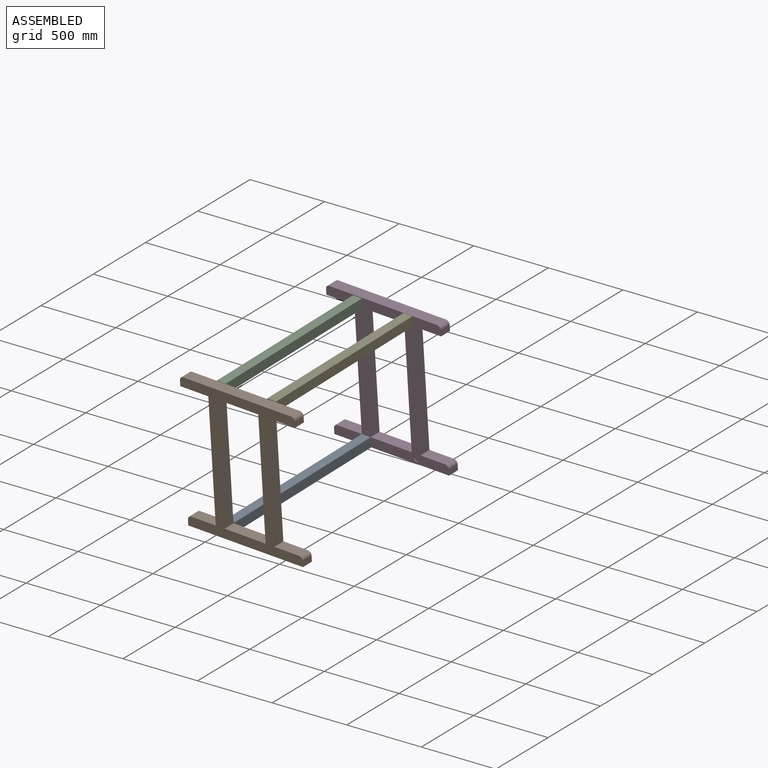
[diagram: assembled view]
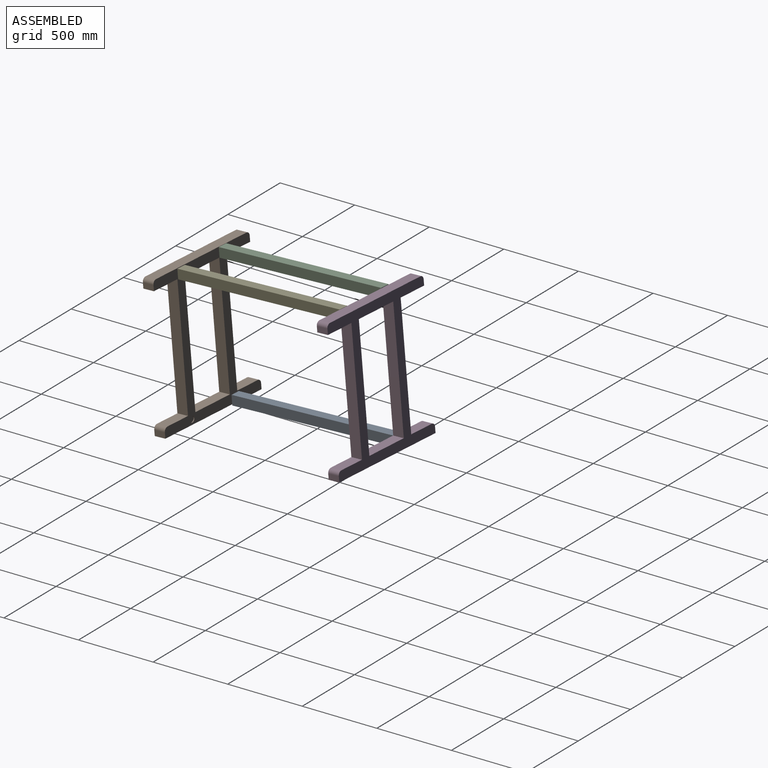
[diagram: assembled view, second angle]
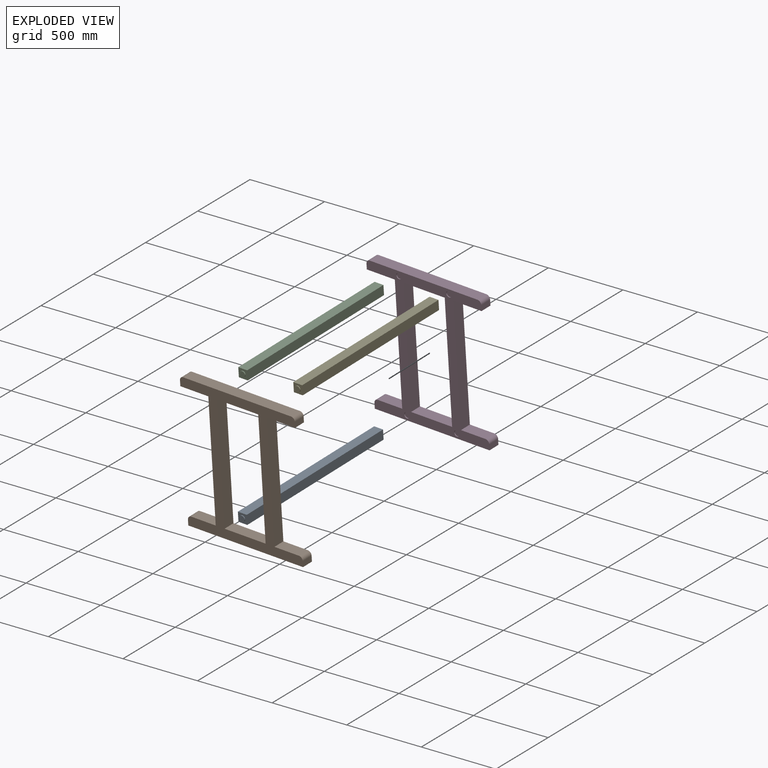
[diagram: exploded view]
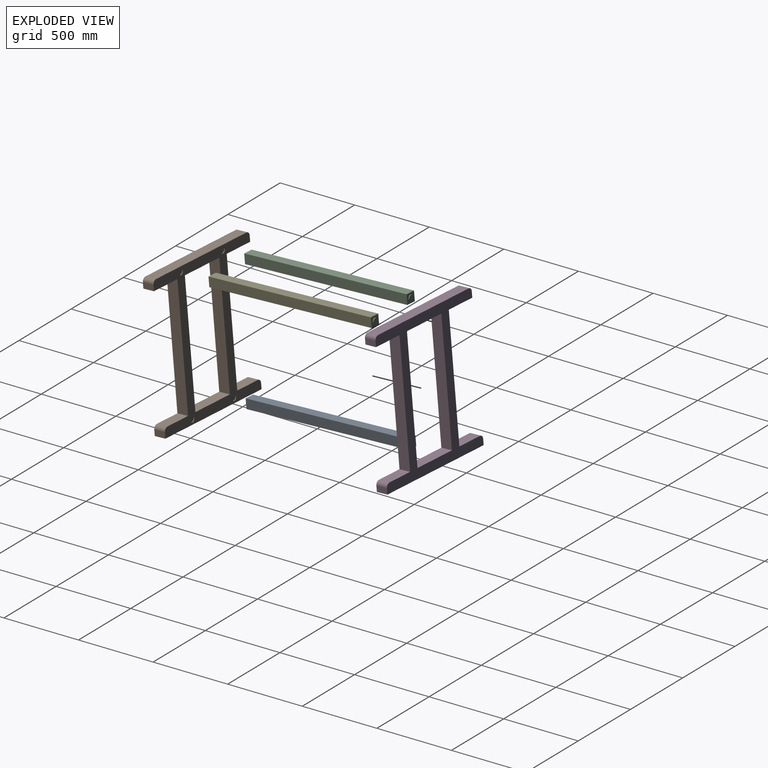
[diagram: exploded view, second angle]
ASSEMBLY  parts=5 mates=5
PART A: 10 faces, bbox 63.5x1181.1x63.5 mm
  f0: plane 1168.4x63.5mm, normal (0,0,-1), area 74193.4mm2, adj f1,f3,f4,f5
  f1: plane 1168.4x63.5mm, normal (1,0,0), area 74193.4mm2, adj f0,f2,f4,f5
  f2: plane 1168.4x63.5mm, normal (0,0,1), area 74193.4mm2, adj f1,f3,f4,f5
  f3: plane 1168.4x63.5mm, normal (-1,0,0), area 74193.4mm2, adj f0,f2,f4,f5
  f4: plane 63.5x63.5mm, normal (0,-1,0), area 2892.2mm2, adj f0,f1,f2,f3,f8
  f5: plane 63.5x63.5mm, normal (0,1,0), area 2892.2mm2, adj f0,f1,f2,f3,f6
  f6: cylinder r=19.05mm len=38.1mm, axis (0,-1,0), area 760.1mm2, adj f5,f7
  f7: plane 38.1x38.1mm, normal (0,1,0), area 1140.1mm2, adj f6
  f8: cylinder r=19.05mm len=38.1mm, axis (0,1,0), area 760.1mm2, adj f4,f9
  f9: plane 38.1x38.1mm, normal (0,-1,0), area 1140.1mm2, adj f8
PART B: 30 faces, bbox 822.4x76.2x939.8 mm
  f0: plane 939.8x822.39mm, normal (0,-1,0), area 202554.5mm2, adj f1,f2,f3,f4,f5,f6,f7,f8
  f1: plane 294.1x76.2mm, normal (0,0,1), area 22410.2mm2, adj f0,f2,f16,f17
  f2: plane 812.8x76.2mm, normal (1,0,0), area 61935.4mm2, adj f0,f1,f3,f17
  f3: plane 294.1x76.2mm, normal (0,0,-1), area 22410.2mm2, adj f0,f2,f16,f17
  f4: plane 76.2x38.1mm, normal (1,0,0), area 2903.2mm2, adj f0,f15,f17,f21
  f5: plane 771.59x76.2mm, normal (0,0,1), area 58794.9mm2, adj f0,f17,f18,f21
  f6: plane 76.2x38.1mm, normal (-1,0,0), area 2903.2mm2, adj f0,f7,f17,f18
  f7: plane 200.64x76.2mm, normal (0,0,-1), area 15289.1mm2, adj f0,f6,f8,f17
  f8: plane 812.8x76.2mm, normal (-1,0,0), area 61935.4mm2, adj f0,f7,f9,f17
  f9: plane 175.24x76.2mm, normal (0,0,1), area 13353.6mm2, adj f0,f8,f17,f19
  f10: plane 76.2x38.1mm, normal (-1,0,0), area 2903.2mm2, adj f0,f11,f17,f19
  f11: plane 822.39x76.2mm, normal (0,0,-1), area 62665.8mm2, adj f0,f10,f12,f17
  f12: plane 76.2x38.1mm, normal (1,0,0), area 2903.2mm2, adj f0,f11,f17,f20
  f13: plane 175.24x76.2mm, normal (0,0,1), area 13353.6mm2, adj f0,f14,f17,f20
  f14: plane 812.8x76.2mm, normal (1,0,0), area 61935.4mm2, adj f0,f13,f15,f17
  f15: plane 200.64x76.2mm, normal (0,0,-1), area 15289.1mm2, adj f0,f4,f14,f17
  f16: plane 812.8x76.2mm, normal (-1,0,0), area 61935.4mm2, adj f0,f1,f3,f17
  f17: plane 939.8x822.39mm, normal (0,1,0), area 207114.8mm2, adj f1,f2,f3,f4,f5,f6,f7,f8
  f18: cylinder r=25.4mm len=76.2mm, axis (0,1,0), area 3040.2mm2, adj f0,f5,f6,f17
  f19: cylinder r=25.4mm len=76.2mm, axis (0,1,0), area 3040.2mm2, adj f0,f9,f10,f17
  f20: cylinder r=25.4mm len=76.2mm, axis (0,-1,0), area 3040.2mm2, adj f0,f12,f13,f17
  f21: cylinder r=25.4mm len=76.2mm, axis (0,1,0), area 3040.2mm2, adj f0,f4,f5,f17
  f22: cylinder r=19.05mm len=38.1mm, axis (0,-1,0), area 729.7mm2, adj f0,f23
  f23: plane 38.1x38.1mm, normal (0,-1,0), area 1140.1mm2, adj f22
  f24: cylinder r=19.05mm len=38.1mm, axis (0,-1,0), area 729.7mm2, adj f0,f25
  f25: plane 38.1x38.1mm, normal (0,-1,0), area 1140.1mm2, adj f24
  f26: cylinder r=19.05mm len=38.1mm, axis (0,-1,0), area 729.7mm2, adj f0,f27
  f27: plane 38.1x38.1mm, normal (0,-1,0), area 1140.1mm2, adj f26
  f28: cylinder r=19.05mm len=38.1mm, axis (0,-1,0), area 729.7mm2, adj f0,f29
  f29: plane 38.1x38.1mm, normal (0,-1,0), area 1140.1mm2, adj f28
PART C: same geometry as A
PART D: same geometry as B
PART E: same geometry as A
PLACE A rot(axis=(0.71,0.03,-0.71),7.1deg) t=(-260.47,708.68,-99.48)mm
PLACE B rot(axis=(0,-0.04,1),175deg) t=(-191.86,-550.99,-241.56)mm
PLACE C rot(axis=(0.71,0.03,-0.71),7.1deg) t=(-261.32,622.66,772.64)mm
PLACE D rot(axis=(0.71,0.03,-0.71),7.1deg) t=(-76.09,767.24,-126.23)mm
PLACE E rot(axis=(0.71,0.03,-0.71),7.1deg) t=(95.19,594.76,770.2)mm
MATE slider B.f26 <-> A.f6  axis (0.09,0.99,0.09) through (-363.61,-465.64,-202.22)mm
MATE slider E.f6 <-> B.f22  axis (-0.09,-0.99,-0.09) through (-7.19,-571.06,668.21)mm
MATE slider C.f6 <-> D.f22  axis (-0.09,-0.99,-0.09) through (-261.32,622.66,772.64)mm
MATE slider C.f6 <-> B.f24  axis (0.09,0.99,0.09) through (-363.43,-540.02,670.92)mm
MATE slider A.f6 <-> D.f28  axis (-0.09,-0.99,-0.09) through (-259.92,714.98,-98.93)mm
